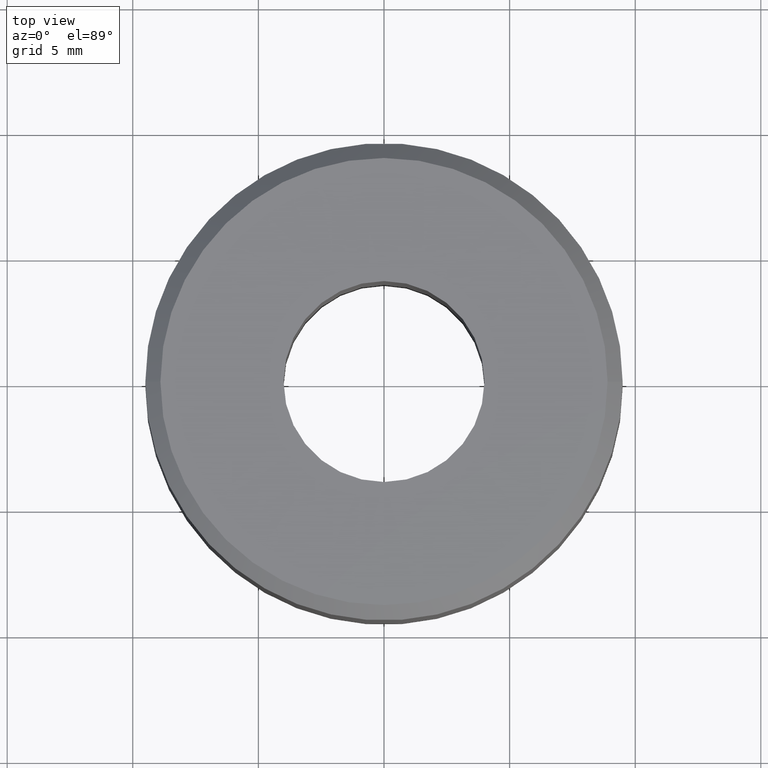
[diagram: clean part render]
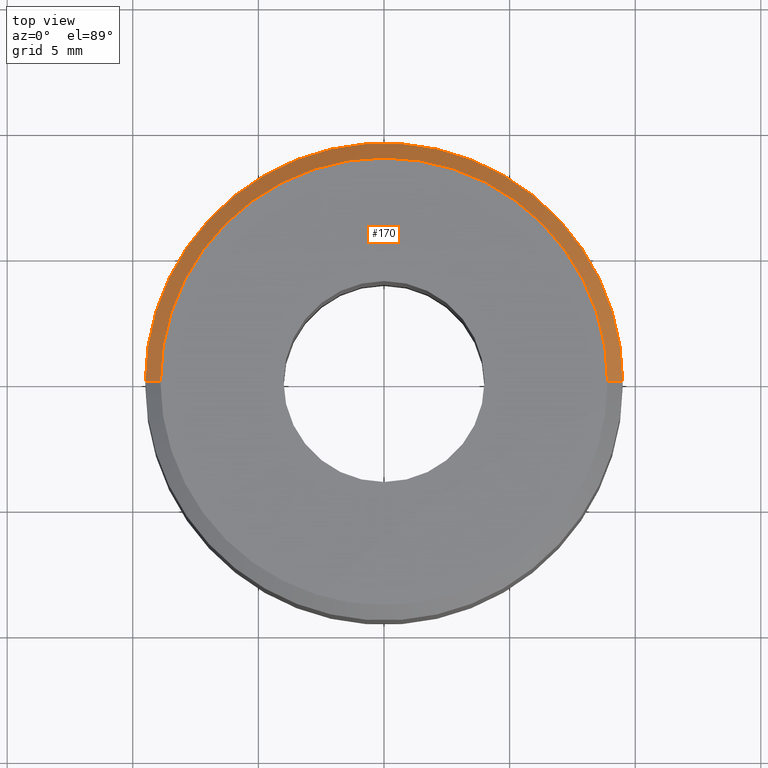
[diagram: same view with one face highlighted and labeled with its STEP entity id]
A machine part, top view. The second image highlights one B-rep face of the part: STEP entity #170.
In plain terms, the highlighted conical surface has half-angle 45 deg.
Its self-contained STEP definition (entity closure, byte-faithful):
#9 = VERTEX_POINT ( 'NONE', #67 ) ;
#15 = AXIS2_PLACEMENT_3D ( 'NONE', #348, #104, #188 ) ;
#27 = CARTESIAN_POINT ( 'NONE',  ( 0.0000000000000000000, 0.0000000000000000000, 10.69999999999993200 ) ) ;
#36 = CONICAL_SURFACE ( 'NONE', #185, 9.500000000000008900, 0.7853981633974468400 ) ;
#38 = EDGE_CURVE ( 'NONE', #9, #276, #269, .T. ) ;
#39 = VERTEX_POINT ( 'NONE', #250 ) ;
#44 = DIRECTION ( 'NONE',  ( -1.000000000000000000, 0.0000000000000000000, 0.0000000000000000000 ) ) ;
#45 = CARTESIAN_POINT ( 'NONE',  ( -9.500000000000008900, 0.0000000000000000000, 10.69999999999993200 ) ) ;
#51 = EDGE_CURVE ( 'NONE', #39, #9, #344, .T. ) ;
#58 = CARTESIAN_POINT ( 'NONE',  ( 9.500000000000008900, 0.0000000000000000000, 10.69999999999993200 ) ) ;
#66 = VECTOR ( 'NONE', #237, 999.9999999999998900 ) ;
#67 = CARTESIAN_POINT ( 'NONE',  ( -8.900000000000249000, 0.0000000000000000000, 11.29999999999969200 ) ) ;
#70 = ORIENTED_EDGE ( 'NONE', *, *, #240, .T. ) ;
#76 = EDGE_LOOP ( 'NONE', ( #241, #292, #70, #327 ) ) ;
#80 = DIRECTION ( 'NONE',  ( 1.000000000000000000, 0.0000000000000000000, 0.0000000000000000000 ) ) ;
#104 = DIRECTION ( 'NONE',  ( -0.0000000000000000000, -0.0000000000000000000, 1.000000000000000000 ) ) ;
#129 = DIRECTION ( 'NONE',  ( 0.7071067811865464600, 8.659560562354921800E-017, -0.7071067811865486800 ) ) ;
#168 = LINE ( 'NONE', #243, #224 ) ;
#170 = ADVANCED_FACE ( 'NONE', ( #307 ), #36, .T. ) ;
#185 = AXIS2_PLACEMENT_3D ( 'NONE', #27, #226, #44 ) ;
#188 = DIRECTION ( 'NONE',  ( 1.000000000000000000, 0.0000000000000000000, 0.0000000000000000000 ) ) ;
#208 = CARTESIAN_POINT ( 'NONE',  ( -9.500000000000008900, 1.163414459189986700E-015, 10.69999999999993200 ) ) ;
#224 = VECTOR ( 'NONE', #129, 999.9999999999998900 ) ;
#225 = AXIS2_PLACEMENT_3D ( 'NONE', #287, #312, #80 ) ;
#226 = DIRECTION ( 'NONE',  ( 0.0000000000000000000, 0.0000000000000000000, -1.000000000000000000 ) ) ;
#233 = CIRCLE ( 'NONE', #225, 9.500000000000008900 ) ;
#237 = DIRECTION ( 'NONE',  ( -0.7071067811865464600, 0.0000000000000000000, -0.7071067811865486800 ) ) ;
#240 = EDGE_CURVE ( 'NONE', #288, #276, #233, .T. ) ;
#241 = ORIENTED_EDGE ( 'NONE', *, *, #51, .F. ) ;
#243 = CARTESIAN_POINT ( 'NONE',  ( 9.500000000000008900, 1.163414459189986700E-015, 10.69999999999993200 ) ) ;
#250 = CARTESIAN_POINT ( 'NONE',  ( 8.900000000000249000, 1.126675055215580800E-015, 11.29999999999969200 ) ) ;
#269 = LINE ( 'NONE', #45, #66 ) ;
#276 = VERTEX_POINT ( 'NONE', #208 ) ;
#287 = CARTESIAN_POINT ( 'NONE',  ( 0.0000000000000000000, 0.0000000000000000000, 10.69999999999993200 ) ) ;
#288 = VERTEX_POINT ( 'NONE', #58 ) ;
#292 = ORIENTED_EDGE ( 'NONE', *, *, #305, .T. ) ;
#305 = EDGE_CURVE ( 'NONE', #39, #288, #168, .T. ) ;
#307 = FACE_OUTER_BOUND ( 'NONE', #76, .T. ) ;
#312 = DIRECTION ( 'NONE',  ( -0.0000000000000000000, -0.0000000000000000000, 1.000000000000000000 ) ) ;
#327 = ORIENTED_EDGE ( 'NONE', *, *, #38, .F. ) ;
#344 = CIRCLE ( 'NONE', #15, 8.900000000000249000 ) ;
#348 = CARTESIAN_POINT ( 'NONE',  ( 0.0000000000000000000, 0.0000000000000000000, 11.29999999999969200 ) ) ;